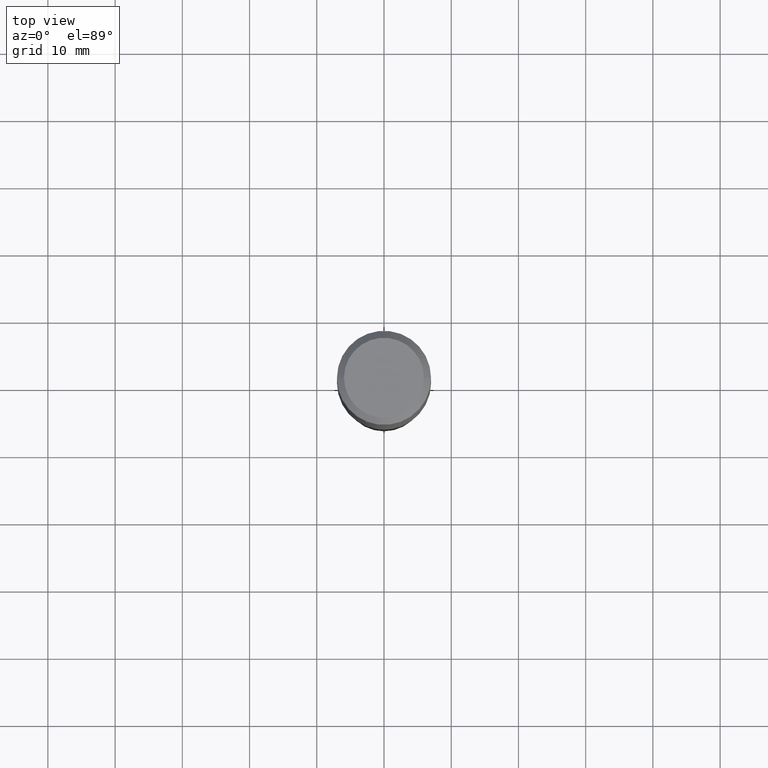
[diagram: clean part render]
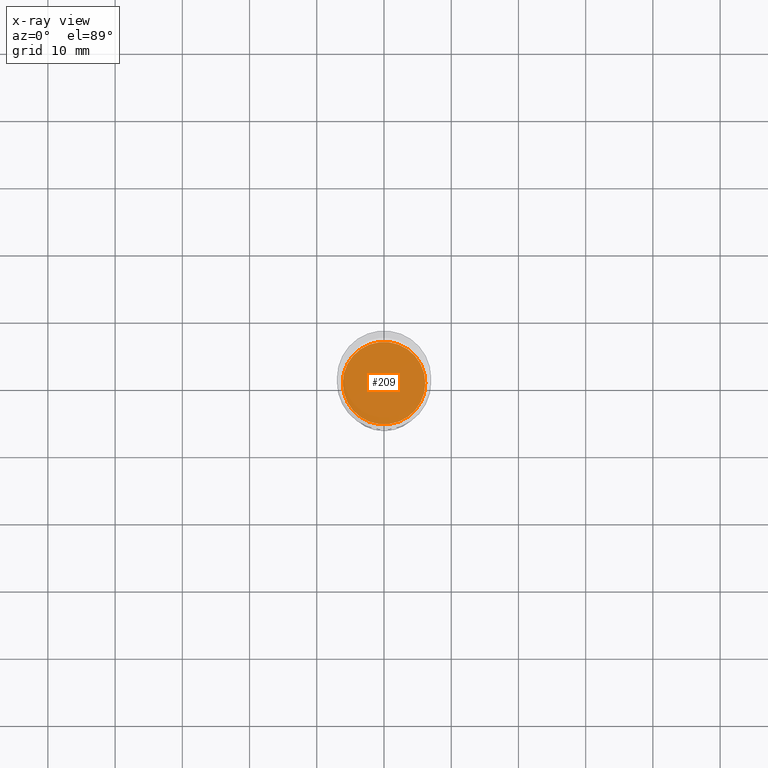
[diagram: x-ray — body ghosted, one internal face saturated and labeled with its STEP entity id]
A machine part, top view, then the same camera in x-ray: the body is ghosted and one INTERNAL B-rep face — a face not visible from any outside direction — is saturated and labeled: STEP entity #209.
In plain terms, the highlighted planar face has unit normal (-0, 0, 1).
Its self-contained STEP definition (entity closure, byte-faithful):
#33 = AXIS2_PLACEMENT_3D ( 'NONE', #316, #227, #410 ) ;
#37 = FACE_OUTER_BOUND ( 'NONE', #203, .T. ) ;
#67 = DIRECTION ( 'NONE',  ( -2.438088387897960049E-29, 3.491481338843145188E-15, 1.000000000000000000 ) ) ;
#98 = PLANE ( 'NONE',  #317 ) ;
#147 = CARTESIAN_POINT ( 'NONE',  ( -0.2417000000000000259, -4.740606049889086408E-15, -1.850400000000000933 ) ) ;
#159 = EDGE_CURVE ( 'NONE', #390, #206, #469, .T. ) ;
#170 = DIRECTION ( 'NONE',  ( 1.000000000000000000, -6.982962677686265922E-15, 4.876176775795935793E-29 ) ) ;
#201 = AXIS2_PLACEMENT_3D ( 'NONE', #220, #356, #294 ) ;
#203 = EDGE_LOOP ( 'NONE', ( #480, #340 ) ) ;
#206 = VERTEX_POINT ( 'NONE', #147 ) ;
#209 = ADVANCED_FACE ( 'NONE', ( #37 ), #98, .F. ) ;
#220 = CARTESIAN_POINT ( 'NONE',  ( 4.525095478964978515E-29, -6.460637069395359943E-15, -1.850400000000000933 ) ) ;
#227 = DIRECTION ( 'NONE',  ( -2.445468806185136597E-29, 3.491481338843145583E-15, 1.000000000000000000 ) ) ;
#262 = CARTESIAN_POINT ( 'NONE',  ( 4.525095478964978515E-29, -6.460637069395359943E-15, -1.850400000000000933 ) ) ;
#294 = DIRECTION ( 'NONE',  ( 1.000000000000000000, -6.982962677686267499E-15, 0.000000000000000000 ) ) ;
#316 = CARTESIAN_POINT ( 'NONE',  ( 4.525095478964978515E-29, -6.460637069395359943E-15, -1.850400000000000933 ) ) ;
#317 = AXIS2_PLACEMENT_3D ( 'NONE', #262, #67, #170 ) ;
#340 = ORIENTED_EDGE ( 'NONE', *, *, #442, .F. ) ;
#356 = DIRECTION ( 'NONE',  ( -2.445468806185136597E-29, 3.491481338843145583E-15, 1.000000000000000000 ) ) ;
#372 = CARTESIAN_POINT ( 'NONE',  ( 0.2417000000000000259, -8.148419148592130335E-15, -1.850400000000000933 ) ) ;
#390 = VERTEX_POINT ( 'NONE', #372 ) ;
#410 = DIRECTION ( 'NONE',  ( 1.000000000000000000, -6.982962677686267499E-15, 0.000000000000000000 ) ) ;
#426 = CIRCLE ( 'NONE', #33, 0.2417000000000000259 ) ;
#442 = EDGE_CURVE ( 'NONE', #206, #390, #426, .T. ) ;
#469 = CIRCLE ( 'NONE', #201, 0.2417000000000000259 ) ;
#480 = ORIENTED_EDGE ( 'NONE', *, *, #159, .F. ) ;